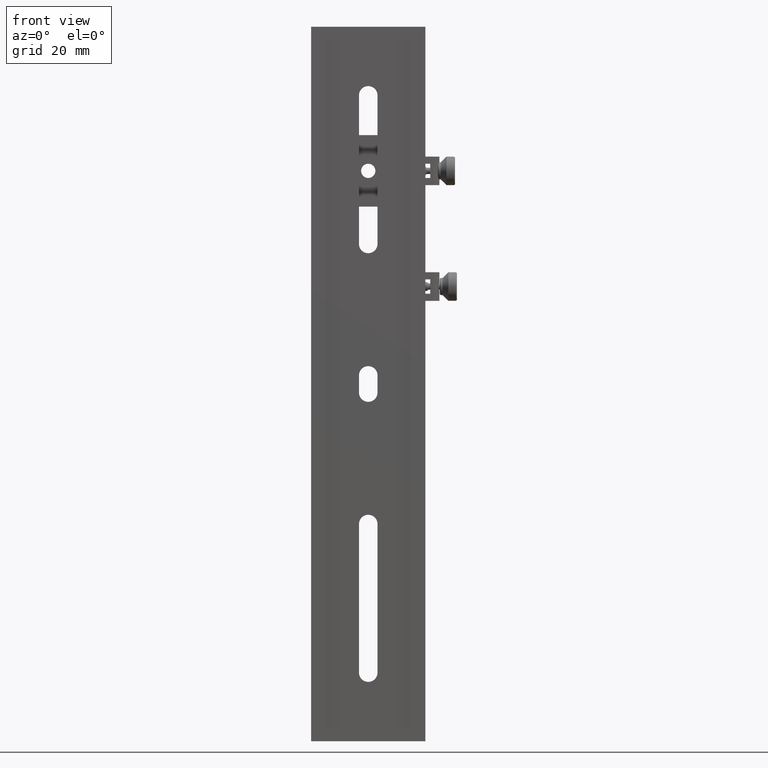
[diagram: clean part render]
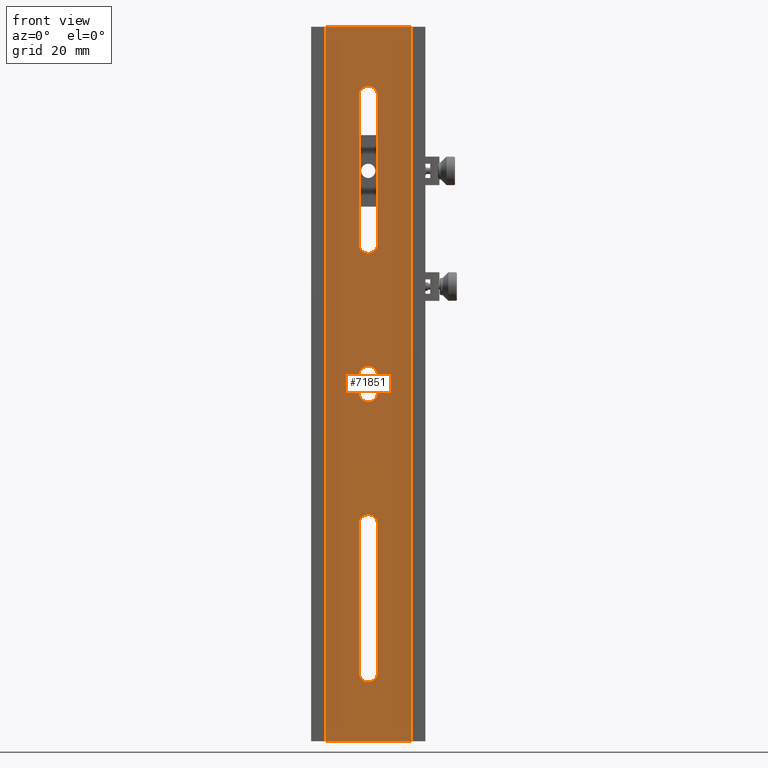
[diagram: same view with one face highlighted and labeled with its STEP entity id]
A machine part, front view. The second image highlights one B-rep face of the part: STEP entity #71851.
In plain terms, the highlighted planar face has unit normal (0, -1, 0).
Its self-contained STEP definition (entity closure, byte-faithful):
#786 = CARTESIAN_POINT ( 'NONE',  ( -20.26032092050903799, -2.956788624934999721, -6.167392011017266640 ) ) ;
#1215 = CARTESIAN_POINT ( 'NONE',  ( -17.85659485934300150, -2.956788624935001053, -3.430600443733370586 ) ) ;
#1605 = B_SPLINE_CURVE_WITH_KNOTS ( 'NONE', 3,
 ( #74560, #6483, #67862, #27073, #19490, #5153, #32908, #46366, #60257, #87566, #53088, #66959, #39638, #73241, #39200, #46802, #26223, #59811 ),
 .UNSPECIFIED., .F., .F.,
 ( 4, 2, 2, 2, 2, 2, 2, 2, 4 ),
 ( 0.000000000000000000, 0.1250000000000000000, 0.2500000000000000000, 0.3750000000000000000, 0.5000000000000000000, 0.6250000000000000000, 0.7500000000000000000, 0.8750000000000000000, 1.000000000000000000 ),
 .UNSPECIFIED. ) ;
#1610 = B_SPLINE_CURVE_WITH_KNOTS ( 'NONE', 3,
 ( #26030, #47059, #46189, #53358 ),
 .UNSPECIFIED., .F., .F.,
 ( 4, 4 ),
 ( 0.000000000000000000, 1.000000000000000000 ),
 .UNSPECIFIED. ) ;
#1711 = VERTEX_POINT ( 'NONE', #71266 ) ;
#2124 = CARTESIAN_POINT ( 'NONE',  ( -17.85659485934299795, -2.956788624935000165, 1.000000000000000000 ) ) ;
#3604 = CARTESIAN_POINT ( 'NONE',  ( -17.85659485934299795, -2.956788624935000165, -3.000000000000000000 ) ) ;
#3734 = CARTESIAN_POINT ( 'NONE',  ( -17.93905869912244100, -2.956788624935001941, 3.845926178466176459 ) ) ;
#3761 = B_SPLINE_CURVE_WITH_KNOTS ( 'NONE', 3,
 ( #82737, #1215, #62170, #74261, #40224, #67563, #48270, #786, #21393, #34377, #6192, #33513, #14227, #47384, #47840, #60859, #13804, #82313 ),
 .UNSPECIFIED., .F., .F.,
 ( 4, 2, 2, 2, 2, 2, 2, 2, 4 ),
 ( 0.000000000000000000, 0.1249999999999998890, 0.2499999999999998890, 0.3749999999999998890, 0.4999999999999998890, 0.6249999999999998890, 0.7499999999999998890, 0.8749999999999998890, 1.000000000000000000 ),
 .UNSPECIFIED. ) ;
#3770 = CARTESIAN_POINT ( 'NONE',  ( -24.35659485934299795, -2.956788624935000165, -49.00000000000000000 ) ) ;
#3814 = EDGE_CURVE ( 'NONE', #57604, #64510, #44147, .T. ) ;
#4167 = CARTESIAN_POINT ( 'NONE',  ( -18.26891405824020609, -2.956788624934999721, 4.641516131906914922 ) ) ;
#4625 = CARTESIAN_POINT ( 'NONE',  ( -21.95286879817627934, -2.956788624934999721, 6.167392011017279074 ) ) ;
#4763 = CARTESIAN_POINT ( 'NONE',  ( -23.10035524420647945, -2.956788624935000609, -103.6022305183279286 ) ) ;
#5074 = CARTESIAN_POINT ( 'NONE',  ( -19.46531653056762323, -2.956788624935000609, 5.838090410557754240 ) ) ;
#5153 = CARTESIAN_POINT ( 'NONE',  ( -19.11263124193531482, -2.956788624935000165, 46.39756636521663324 ) ) ;
#5727 = EDGE_CURVE ( 'NONE', #64510, #75881, #49356, .T. ) ;
#6145 = CARTESIAN_POINT ( 'NONE',  ( -17.85659485934299795, -2.956788624935000165, 101.0000000000000000 ) ) ;
#6192 = CARTESIAN_POINT ( 'NONE',  ( -21.95275884093866381, -2.956788624935000165, -6.167126550767320303 ) ) ;
#6483 = CARTESIAN_POINT ( 'NONE',  ( -17.85659485934299440, -2.956788624935000609, 48.56939955626573635 ) ) ;
#7535 = CARTESIAN_POINT ( 'NONE',  ( -24.35659485934299795, -2.956788624935000165, -3.000000000000000000 ) ) ;
#8142 = DIRECTION ( 'NONE',  ( 0.000000000000000000, -1.000000000000000000, 0.000000000000000000 ) ) ;
#8235 = EDGE_CURVE ( 'NONE', #44161, #1711, #55363, .T. ) ;
#8406 = CARTESIAN_POINT ( 'NONE',  ( -24.35659485934299795, -2.956788624935000165, 1.000000000000000000 ) ) ;
#8570 = FACE_BOUND ( 'NONE', #63133, .T. ) ;
#9722 = CARTESIAN_POINT ( 'NONE',  ( -17.85659485934300150, -2.956788624935001053, 101.4313524600773633 ) ) ;
#10129 = CARTESIAN_POINT ( 'NONE',  ( -24.35659485934299795, -2.956788624935000165, -101.0000000000000000 ) ) ;
#10628 = CARTESIAN_POINT ( 'NONE',  ( -20.26043087775214246, -2.956788624935000609, 104.1671265507766577 ) ) ;
#10913 = CARTESIAN_POINT ( 'NONE',  ( -18.50416116649691745, -2.956788624935000609, 4.993963559385911744 ) ) ;
#11375 = CARTESIAN_POINT ( 'NONE',  ( -21.53684813478605875, -2.956788624935000165, -45.75014366605233107 ) ) ;
#11511 = CARTESIAN_POINT ( 'NONE',  ( -20.67634158390513477, -2.956788624935000165, 104.2501436660602820 ) ) ;
#11868 = VERTEX_POINT ( 'NONE', #26880 ) ;
#13804 = CARTESIAN_POINT ( 'NONE',  ( -24.35659485934299795, -2.956788624934999721, -3.431352460069973631 ) ) ;
#13942 = CARTESIAN_POINT ( 'NONE',  ( -24.35659485934299795, -2.956788624935000165, -3.000000000000000000 ) ) ;
#14227 = CARTESIAN_POINT ( 'NONE',  ( -23.10035524420876385, -2.956788624935000165, -5.602230518327679931 ) ) ;
#14879 = CARTESIAN_POINT ( 'NONE',  ( -21.10659485934299795, -2.956788624935000165, 0.000000000000000000 ) ) ;
#15725 = PLANE ( 'NONE',  #41989 ) ;
#15836 = CARTESIAN_POINT ( 'NONE',  ( -6.106594859342999726, -2.956788624935000165, 125.0000000000000000 ) ) ;
#16007 = CARTESIAN_POINT ( 'NONE',  ( -24.35659485934299795, -2.956788624935000165, -49.00000000000000000 ) ) ;
#16461 = CARTESIAN_POINT ( 'NONE',  ( -23.10055847674763640, -2.956788624935000165, 103.6024336347831536 ) ) ;
#16614 = FACE_BOUND ( 'NONE', #22940, .T. ) ;
#17338 = EDGE_CURVE ( 'NONE', #69402, #82770, #1605, .T. ) ;
#18084 = CARTESIAN_POINT ( 'NONE',  ( -17.85659485934299795, -2.956788624935000165, 3.000000000000000000 ) ) ;
#18119 = CARTESIAN_POINT ( 'NONE',  ( -22.74776323087807839, -2.956788624935000165, -46.16217504969483088 ) ) ;
#19007 = CARTESIAN_POINT ( 'NONE',  ( -18.50416116649406817, -2.956788624935000165, -47.00603644062057640 ) ) ;
#19490 = CARTESIAN_POINT ( 'NONE',  ( -18.50436439903813479, -2.956788624935000165, 47.00623955707076362 ) ) ;
#19609 = CARTESIAN_POINT ( 'NONE',  ( -17.85659485934299795, -2.956788624935000165, -49.00000000000000000 ) ) ;
#19644 = CARTESIAN_POINT ( 'NONE',  ( -16.10659485934299795, -2.956788624935000165, -125.0000000000000000 ) ) ;
#20984 = CARTESIAN_POINT ( 'NONE',  ( -17.85659485934299795, -2.956788624935000165, -1.000000000000000000 ) ) ;
#21166 = VERTEX_POINT ( 'NONE', #63563 ) ;
#21393 = CARTESIAN_POINT ( 'NONE',  ( -20.67634158390622545, -2.956788624935000165, -6.249856333946728348 ) ) ;
#22475 = FACE_OUTER_BOUND ( 'NONE', #71084, .T. ) ;
#22940 = EDGE_LOOP ( 'NONE', ( #35050, #36854, #27368, #63196 ) ) ;
#23588 = ORIENTED_EDGE ( 'NONE', *, *, #38014, .F. ) ;
#23938 = CARTESIAN_POINT ( 'NONE',  ( -18.26891405824019188, -2.956788624935000609, -47.35848386809270494 ) ) ;
#24036 = CARTESIAN_POINT ( 'NONE',  ( -17.85659485934299440, -2.956788624935000609, -101.4306004437302704 ) ) ;
#24511 = CARTESIAN_POINT ( 'NONE',  ( -19.46531653056077715, -2.956788624935000165, 103.8380904105465561 ) ) ;
#24808 = CARTESIAN_POINT ( 'NONE',  ( -24.35659485934299795, -2.956788624935000165, 3.000000000000000000 ) ) ;
#24934 = CARTESIAN_POINT ( 'NONE',  ( -22.74787318812167314, -2.956788624935000165, -103.8380904105526810 ) ) ;
#25061 = EDGE_CURVE ( 'NONE', #11868, #41984, #51700, .T. ) ;
#25381 = CARTESIAN_POINT ( 'NONE',  ( -24.35659485934300506, -2.956788624935001053, -101.4313524600646730 ) ) ;
#26030 = CARTESIAN_POINT ( 'NONE',  ( -24.35659485934299795, -2.956788624935000165, -101.0000000000000000 ) ) ;
#26223 = CARTESIAN_POINT ( 'NONE',  ( -24.35659485934300506, -2.956788624935001053, 48.56864753992794448 ) ) ;
#26600 = CARTESIAN_POINT ( 'NONE',  ( -36.10659485934299795, -2.956788624935000165, 125.0000000000000000 ) ) ;
#26880 = CARTESIAN_POINT ( 'NONE',  ( -24.35659485934299795, -2.956788624935000165, 3.000000000000000000 ) ) ;
#27073 = CARTESIAN_POINT ( 'NONE',  ( -18.26850444873791801, -2.956788624935000165, 47.35872167126983356 ) ) ;
#27320 = ORIENTED_EDGE ( 'NONE', *, *, #25061, .T. ) ;
#27368 = ORIENTED_EDGE ( 'NONE', *, *, #3814, .T. ) ;
#27698 = CARTESIAN_POINT ( 'NONE',  ( -17.85659485934299795, -2.956788624935000165, -3.000000000000000000 ) ) ;
#27815 = EDGE_CURVE ( 'NONE', #21166, #30804, #49339, .T. ) ;
#28663 = CARTESIAN_POINT ( 'NONE',  ( -36.10659485934299795, -2.956788624935000165, 41.66666666666665009 ) ) ;
#28683 = B_SPLINE_CURVE_WITH_KNOTS ( 'NONE', 3,
 ( #7535, #61312, #8406, #68467 ),
 .UNSPECIFIED., .F., .F.,
 ( 4, 4 ),
 ( 0.000000000000000000, 1.000000000000000000 ),
 .UNSPECIFIED. ) ;
#30804 = VERTEX_POINT ( 'NONE', #15836 ) ;
#31632 = CARTESIAN_POINT ( 'NONE',  ( -18.50436439904666486, -2.956788624935000165, -102.9937604429299256 ) ) ;
#31876 = ORIENTED_EDGE ( 'NONE', *, *, #85686, .T. ) ;
#31956 = CARTESIAN_POINT ( 'NONE',  ( -17.85659485934299795, -2.956788624935000165, 3.431352460070659305 ) ) ;
#31990 = CARTESIAN_POINT ( 'NONE',  ( -17.85659485934299795, -2.956788624935000165, -49.00000000000000000 ) ) ;
#32908 = CARTESIAN_POINT ( 'NONE',  ( -19.46542648781271367, -2.956788624935000165, 46.16217504969224450 ) ) ;
#32938 = CARTESIAN_POINT ( 'NONE',  ( -6.106594859342999726, -2.956788624935000165, -125.0000000000000000 ) ) ;
#33283 = ORIENTED_EDGE ( 'NONE', *, *, #66687, .T. ) ;
#33513 = CARTESIAN_POINT ( 'NONE',  ( -22.74787318812041548, -2.956788624935000609, -5.838090410556037391 ) ) ;
#34377 = CARTESIAN_POINT ( 'NONE',  ( -21.53684813477977400, -2.956788624935000609, -6.250143666053271652 ) ) ;
#34486 = CARTESIAN_POINT ( 'NONE',  ( -36.10659485934299795, -2.956788624935000165, -41.66666666666665009 ) ) ;
#35000 = B_SPLINE_CURVE_WITH_KNOTS ( 'NONE', 3,
 ( #68444, #82316, #19644, #61291 ),
 .UNSPECIFIED., .F., .F.,
 ( 4, 4 ),
 ( 0.000000000000000000, 1.000000000000000000 ),
 .UNSPECIFIED. ) ;
#35050 = ORIENTED_EDGE ( 'NONE', *, *, #73527, .T. ) ;
#35297 = CARTESIAN_POINT ( 'NONE',  ( -24.35659485934299795, -2.956788624935000165, -101.0000000000000000 ) ) ;
#35428 = ORIENTED_EDGE ( 'NONE', *, *, #59829, .T. ) ;
#36854 = ORIENTED_EDGE ( 'NONE', *, *, #56543, .T. ) ;
#37029 = CARTESIAN_POINT ( 'NONE',  ( -17.85659485934299795, -2.956788624935000165, 101.0000000000000000 ) ) ;
#38014 = EDGE_CURVE ( 'NONE', #64090, #41984, #75484, .T. ) ;
#38252 = CARTESIAN_POINT ( 'NONE',  ( -20.67634158389992649, -2.956788624935000165, -45.74985633394767603 ) ) ;
#38652 = CARTESIAN_POINT ( 'NONE',  ( -19.11283447447652506, -2.956788624935000165, 5.602230518326646980 ) ) ;
#38688 = CARTESIAN_POINT ( 'NONE',  ( -21.95286879818100445, -2.956788624935000165, -45.83260798898176347 ) ) ;
#38832 = CARTESIAN_POINT ( 'NONE',  ( -23.70882531965090934, -2.956788624935000165, 102.9937604429292719 ) ) ;
#39200 = CARTESIAN_POINT ( 'NONE',  ( -23.94427566044581113, -2.956788624935000609, 47.35848386809457367 ) ) ;
#39638 = CARTESIAN_POINT ( 'NONE',  ( -23.10035524420958808, -2.956788624935000609, 46.39776948167211401 ) ) ;
#39732 = CARTESIAN_POINT ( 'NONE',  ( -17.85659485934299795, -2.956788624935000165, 83.66666666666669983 ) ) ;
#40224 = CARTESIAN_POINT ( 'NONE',  ( -18.50436439903792163, -2.956788624934999721, -4.993760442927133170 ) ) ;
#41984 = VERTEX_POINT ( 'NONE', #54330 ) ;
#41989 = AXIS2_PLACEMENT_3D ( 'NONE', #14879, #8142, #77531 ) ;
#42023 = ORIENTED_EDGE ( 'NONE', *, *, #27815, .T. ) ;
#43179 = ORIENTED_EDGE ( 'NONE', *, *, #8235, .T. ) ;
#44147 = B_SPLINE_CURVE_WITH_KNOTS ( 'NONE', 3,
 ( #3770, #66909, #44514, #45422, #53030, #51239, #18119, #38688, #11375, #38252, #80336, #79011, #78550, #19007, #23938, #73184, #87065, #52160 ),
 .UNSPECIFIED., .F., .F.,
 ( 4, 2, 2, 2, 2, 2, 2, 2, 4 ),
 ( 0.000000000000000000, 0.1250000000000000000, 0.2500000000000000000, 0.3750000000000000000, 0.5000000000000000000, 0.6250000000000000000, 0.7500000000000000000, 0.8750000000000000000, 1.000000000000000000 ),
 .UNSPECIFIED. ) ;
#44161 = VERTEX_POINT ( 'NONE', #49518 ) ;
#44514 = CARTESIAN_POINT ( 'NONE',  ( -24.27372141006092576, -2.956788624935000609, -48.15383601835743121 ) ) ;
#44649 = CARTESIAN_POINT ( 'NONE',  ( -22.74776323085697527, -2.956788624935000165, 103.8378249503130917 ) ) ;
#45001 = B_SPLINE_CURVE_WITH_KNOTS ( 'NONE', 3,
 ( #84530, #86315, #45550, #58115, #38832, #16461, #44649, #65709, #71987, #11511, #10628, #24511, #71096, #66162, #51828, #79143, #9722, #37029 ),
 .UNSPECIFIED., .F., .F.,
 ( 4, 2, 2, 2, 2, 2, 2, 2, 4 ),
 ( 0.000000000000000000, 0.1250000000000000000, 0.2500000000000000000, 0.3750000000000000000, 0.5000000000000000000, 0.6250000000000000000, 0.7500000000000000000, 0.8750000000000000000, 1.000000000000000000 ),
 .UNSPECIFIED. ) ;
#45083 = CARTESIAN_POINT ( 'NONE',  ( -24.27413101956355845, -2.956788624935001053, -101.8459261784601466 ) ) ;
#45422 = CARTESIAN_POINT ( 'NONE',  ( -23.94468526994842250, -2.956788624935000165, -47.35872167126957066 ) ) ;
#45550 = CARTESIAN_POINT ( 'NONE',  ( -24.27372141006444650, -2.956788624935000609, 101.8461639816362947 ) ) ;
#46189 = CARTESIAN_POINT ( 'NONE',  ( -24.35659485934299795, -2.956788624935000165, -66.33333333333330017 ) ) ;
#46280 = CARTESIAN_POINT ( 'NONE',  ( -20.26043087774529283, -2.956788624935000165, 6.167126550765607007 ) ) ;
#46358 = B_SPLINE_CURVE_WITH_KNOTS ( 'NONE', 3,
 ( #79110, #24036, #52695, #59858, #31632, #73296, #58978, #64794, #66135, #86284, #85392, #24934, #4763, #72839, #52255, #45083, #25381, #10129 ),
 .UNSPECIFIED., .F., .F.,
 ( 4, 2, 2, 2, 2, 2, 2, 2, 4 ),
 ( 0.000000000000000000, 0.1250000000000000000, 0.2500000000000000000, 0.3750000000000000000, 0.5000000000000000000, 0.6250000000000000000, 0.7500000000000000000, 0.8750000000000000000, 1.000000000000000000 ),
 .UNSPECIFIED. ) ;
#46366 = CARTESIAN_POINT ( 'NONE',  ( -20.26032092050021305, -2.956788624935000165, 45.83260798898436406 ) ) ;
#46802 = CARTESIAN_POINT ( 'NONE',  ( -24.27413101956355845, -2.956788624935001053, 48.15407382153242111 ) ) ;
#47059 = CARTESIAN_POINT ( 'NONE',  ( -24.35659485934299795, -2.956788624935000165, -83.66666666666669983 ) ) ;
#47384 = CARTESIAN_POINT ( 'NONE',  ( -23.70902855218979255, -2.956788624935001053, -4.993963559384880568 ) ) ;
#47444 = CARTESIAN_POINT ( 'NONE',  ( -24.35659485934299795, -2.956788624935000165, 83.66666666666669983 ) ) ;
#47599 = VERTEX_POINT ( 'NONE', #35297 ) ;
#47840 = CARTESIAN_POINT ( 'NONE',  ( -23.94427566044580047, -2.956788624935000165, -4.641516131907593490 ) ) ;
#48270 = CARTESIAN_POINT ( 'NONE',  ( -19.46542648780387452, -2.956788624935000165, -5.837824950306093719 ) ) ;
#48714 = CARTESIAN_POINT ( 'NONE',  ( -17.85659485934299795, -2.956788624935000165, 3.000000000000000000 ) ) ;
#48846 = CARTESIAN_POINT ( 'NONE',  ( -17.85659485934299795, -2.956788624935000165, -83.66666666666669983 ) ) ;
#49233 = B_SPLINE_CURVE_WITH_KNOTS ( 'NONE', 3,
 ( #67351, #60200, #69125, #26600 ),
 .UNSPECIFIED., .F., .F.,
 ( 4, 4 ),
 ( 0.000000000000000000, 1.000000000000000000 ),
 .UNSPECIFIED. ) ;
#49339 = B_SPLINE_CURVE_WITH_KNOTS ( 'NONE', 3,
 ( #32938, #88042, #81300, #60289 ),
 .UNSPECIFIED., .F., .F.,
 ( 4, 4 ),
 ( 0.000000000000000000, 1.000000000000000000 ),
 .UNSPECIFIED. ) ;
#49356 = B_SPLINE_CURVE_WITH_KNOTS ( 'NONE', 3,
 ( #31990, #50373, #48846, #86642 ),
 .UNSPECIFIED., .F., .F.,
 ( 4, 4 ),
 ( 0.000000000000000000, 1.000000000000000000 ),
 .UNSPECIFIED. ) ;
#49486 = ORIENTED_EDGE ( 'NONE', *, *, #50501, .T. ) ;
#49518 = CARTESIAN_POINT ( 'NONE',  ( -36.10659485934299795, -2.956788624935000165, 125.0000000000000000 ) ) ;
#50373 = CARTESIAN_POINT ( 'NONE',  ( -17.85659485934299795, -2.956788624935000165, -66.33333333333330017 ) ) ;
#50501 = EDGE_CURVE ( 'NONE', #57920, #69402, #86118, .T. ) ;
#51239 = CARTESIAN_POINT ( 'NONE',  ( -23.10055847675078411, -2.956788624935000165, -46.39756636521730115 ) ) ;
#51337 = ORIENTED_EDGE ( 'NONE', *, *, #17338, .T. ) ;
#51385 = EDGE_CURVE ( 'NONE', #64090, #75114, #3761, .T. ) ;
#51700 = B_SPLINE_CURVE_WITH_KNOTS ( 'NONE', 3,
 ( #24808, #79432, #87477, #80757, #52993, #72710, #65985, #4625, #66875, #80303, #46280, #5074, #38652, #10913, #4167, #3734, #31956, #18084 ),
 .UNSPECIFIED., .F., .F.,
 ( 4, 2, 2, 2, 2, 2, 2, 2, 4 ),
 ( 0.000000000000000000, 0.1250000000000001110, 0.2500000000000001110, 0.3750000000000001110, 0.5000000000000001110, 0.6250000000000001110, 0.7500000000000001110, 0.8750000000000001110, 1.000000000000000000 ),
 .UNSPECIFIED. ) ;
#51828 = CARTESIAN_POINT ( 'NONE',  ( -18.26891405824018833, -2.956788624935000609, 102.6415161319000191 ) ) ;
#52160 = CARTESIAN_POINT ( 'NONE',  ( -17.85659485934299795, -2.956788624935000165, -49.00000000000000000 ) ) ;
#52255 = CARTESIAN_POINT ( 'NONE',  ( -23.94427566044580757, -2.956788624935000609, -102.6415161319126952 ) ) ;
#52695 = CARTESIAN_POINT ( 'NONE',  ( -17.93946830863297137, -2.956788624935000609, -101.8461639816587052 ) ) ;
#52993 = CARTESIAN_POINT ( 'NONE',  ( -23.70882531964827322, -2.956788624935000165, 4.993760442926780563 ) ) ;
#53030 = CARTESIAN_POINT ( 'NONE',  ( -23.70882531964775808, -2.956788624935000165, -47.00623955707010282 ) ) ;
#53088 = CARTESIAN_POINT ( 'NONE',  ( -21.95275884093853946, -2.956788624935000609, 45.83287344923355988 ) ) ;
#53358 = CARTESIAN_POINT ( 'NONE',  ( -24.35659485934299795, -2.956788624935000165, -49.00000000000000000 ) ) ;
#54070 = EDGE_CURVE ( 'NONE', #78513, #57920, #45001, .T. ) ;
#54330 = CARTESIAN_POINT ( 'NONE',  ( -17.85659485934299795, -2.956788624935000165, 3.000000000000000000 ) ) ;
#55067 = CARTESIAN_POINT ( 'NONE',  ( -17.85659485934299795, -2.956788624935000165, 49.00000000000000000 ) ) ;
#55363 = B_SPLINE_CURVE_WITH_KNOTS ( 'NONE', 3,
 ( #81978, #28663, #34486, #61839 ),
 .UNSPECIFIED., .F., .F.,
 ( 4, 4 ),
 ( 0.000000000000000000, 1.000000000000000000 ),
 .UNSPECIFIED. ) ;
#56181 = CARTESIAN_POINT ( 'NONE',  ( -24.35659485934299795, -2.956788624935000165, 101.0000000000000000 ) ) ;
#56543 = EDGE_CURVE ( 'NONE', #47599, #57604, #1610, .T. ) ;
#56760 = ORIENTED_EDGE ( 'NONE', *, *, #51385, .T. ) ;
#57604 = VERTEX_POINT ( 'NONE', #16007 ) ;
#57920 = VERTEX_POINT ( 'NONE', #75078 ) ;
#58115 = CARTESIAN_POINT ( 'NONE',  ( -23.94468526994490176, -2.956788624935000165, 102.6412783287365613 ) ) ;
#58978 = CARTESIAN_POINT ( 'NONE',  ( -19.46542648777995410, -2.956788624935000165, -103.8378249502968060 ) ) ;
#59811 = CARTESIAN_POINT ( 'NONE',  ( -24.35659485934299795, -2.956788624935000165, 49.00000000000000000 ) ) ;
#59829 = EDGE_CURVE ( 'NONE', #82770, #78513, #87760, .T. ) ;
#59858 = CARTESIAN_POINT ( 'NONE',  ( -18.26850444872968282, -2.956788624935000165, -102.6412783287140940 ) ) ;
#60200 = CARTESIAN_POINT ( 'NONE',  ( -16.10659485934299795, -2.956788624935000165, 125.0000000000000000 ) ) ;
#60257 = CARTESIAN_POINT ( 'NONE',  ( -20.67634158391255284, -2.956788624935000165, 45.75014366605493166 ) ) ;
#60289 = CARTESIAN_POINT ( 'NONE',  ( -6.106594859342999726, -2.956788624935000165, 125.0000000000000000 ) ) ;
#60859 = CARTESIAN_POINT ( 'NONE',  ( -24.27413101956355845, -2.956788624935000609, -3.845926178465486789 ) ) ;
#61291 = CARTESIAN_POINT ( 'NONE',  ( -6.106594859342999726, -2.956788624935000165, -125.0000000000000000 ) ) ;
#61312 = CARTESIAN_POINT ( 'NONE',  ( -24.35659485934299795, -2.956788624935000165, -1.000000000000000000 ) ) ;
#61339 = CARTESIAN_POINT ( 'NONE',  ( -24.35659485934299795, -2.956788624935000165, 66.33333333333330017 ) ) ;
#61839 = CARTESIAN_POINT ( 'NONE',  ( -36.10659485934299795, -2.956788624935000165, -125.0000000000000000 ) ) ;
#62170 = CARTESIAN_POINT ( 'NONE',  ( -17.93946830862673636, -2.956788624935000609, -3.846163981646760988 ) ) ;
#63133 = EDGE_LOOP ( 'NONE', ( #51337, #35428, #77051, #49486 ) ) ;
#63196 = ORIENTED_EDGE ( 'NONE', *, *, #5727, .T. ) ;
#63563 = CARTESIAN_POINT ( 'NONE',  ( -6.106594859342999726, -2.956788624935000165, -125.0000000000000000 ) ) ;
#64090 = VERTEX_POINT ( 'NONE', #3604 ) ;
#64103 = FACE_BOUND ( 'NONE', #66202, .T. ) ;
#64510 = VERTEX_POINT ( 'NONE', #19609 ) ;
#64794 = CARTESIAN_POINT ( 'NONE',  ( -20.26032092053297262, -2.956788624935000165, -104.1673920110264078 ) ) ;
#65709 = CARTESIAN_POINT ( 'NONE',  ( -21.95286879820210046, -2.956788624935000165, 104.1673920110101506 ) ) ;
#65985 = CARTESIAN_POINT ( 'NONE',  ( -22.74776323088279639, -2.956788624935000165, 5.837824950306081284 ) ) ;
#66135 = CARTESIAN_POINT ( 'NONE',  ( -20.67634158387782151, -2.956788624935000165, -104.2498563339558757 ) ) ;
#66162 = CARTESIAN_POINT ( 'NONE',  ( -18.50416116650476894, -2.956788624935000165, 102.9939635593980682 ) ) ;
#66202 = EDGE_LOOP ( 'NONE', ( #56760, #31876, #27320, #23588 ) ) ;
#66687 = EDGE_CURVE ( 'NONE', #30804, #44161, #49233, .T. ) ;
#66875 = CARTESIAN_POINT ( 'NONE',  ( -21.53684813477769211, -2.956788624935000165, 6.249856333946735454 ) ) ;
#66909 = CARTESIAN_POINT ( 'NONE',  ( -24.35659485934299084, -2.956788624935000609, -48.56939955626678795 ) ) ;
#66959 = CARTESIAN_POINT ( 'NONE',  ( -22.74787318812055048, -2.956788624935000165, 46.16190958944304157 ) ) ;
#67057 = CARTESIAN_POINT ( 'NONE',  ( -17.85659485934299795, -2.956788624935000165, 66.33333333333330017 ) ) ;
#67158 = CARTESIAN_POINT ( 'NONE',  ( -24.35659485934299795, -2.956788624935000165, 101.0000000000000000 ) ) ;
#67351 = CARTESIAN_POINT ( 'NONE',  ( -6.106594859342999726, -2.956788624935000165, 125.0000000000000000 ) ) ;
#67563 = CARTESIAN_POINT ( 'NONE',  ( -19.11263124193551377, -2.956788624934999721, -5.602433634785423777 ) ) ;
#67862 = CARTESIAN_POINT ( 'NONE',  ( -17.93946830862472552, -2.956788624935000609, 48.15383601835716831 ) ) ;
#67966 = CARTESIAN_POINT ( 'NONE',  ( -17.85659485934299795, -2.956788624935000165, 49.00000000000000000 ) ) ;
#68444 = CARTESIAN_POINT ( 'NONE',  ( -36.10659485934299795, -2.956788624935000165, -125.0000000000000000 ) ) ;
#68467 = CARTESIAN_POINT ( 'NONE',  ( -24.35659485934299795, -2.956788624935000165, 3.000000000000000000 ) ) ;
#69125 = CARTESIAN_POINT ( 'NONE',  ( -26.10659485934300150, -2.956788624935000165, 125.0000000000000000 ) ) ;
#69402 = VERTEX_POINT ( 'NONE', #55067 ) ;
#71084 = EDGE_LOOP ( 'NONE', ( #42023, #33283, #43179, #71612 ) ) ;
#71096 = CARTESIAN_POINT ( 'NONE',  ( -19.11283447446867356, -2.956788624935000609, 103.6022305183143430 ) ) ;
#71266 = CARTESIAN_POINT ( 'NONE',  ( -36.10659485934299795, -2.956788624935000165, -125.0000000000000000 ) ) ;
#71612 = ORIENTED_EDGE ( 'NONE', *, *, #79129, .T. ) ;
#71851 = ADVANCED_FACE ( 'NONE', ( #22475, #64103, #8570, #16614 ), #15725, .T. ) ;
#71987 = CARTESIAN_POINT ( 'NONE',  ( -21.53684813478085758, -2.956788624935000165, 104.2498563339397180 ) ) ;
#72710 = CARTESIAN_POINT ( 'NONE',  ( -23.10055847675028673, -2.956788624934999721, 5.602433634785779049 ) ) ;
#72839 = CARTESIAN_POINT ( 'NONE',  ( -23.70902855219209471, -2.956788624935000165, -102.9939635593844685 ) ) ;
#73184 = CARTESIAN_POINT ( 'NONE',  ( -17.93905869912243745, -2.956788624935001053, -48.15407382153430405 ) ) ;
#73241 = CARTESIAN_POINT ( 'NONE',  ( -23.70902855218898608, -2.956788624935000165, 47.00603644061530417 ) ) ;
#73296 = CARTESIAN_POINT ( 'NONE',  ( -19.11263124192678475, -2.956788624935000165, -103.6024336347824573 ) ) ;
#73527 = EDGE_CURVE ( 'NONE', #75881, #47599, #46358, .T. ) ;
#74261 = CARTESIAN_POINT ( 'NONE',  ( -18.26850444873589652, -2.956788624934999721, -4.641278328726319735 ) ) ;
#74560 = CARTESIAN_POINT ( 'NONE',  ( -17.85659485934299795, -2.956788624935000165, 49.00000000000000000 ) ) ;
#75078 = CARTESIAN_POINT ( 'NONE',  ( -17.85659485934299795, -2.956788624935000165, 101.0000000000000000 ) ) ;
#75114 = VERTEX_POINT ( 'NONE', #13942 ) ;
#75484 = B_SPLINE_CURVE_WITH_KNOTS ( 'NONE', 3,
 ( #27698, #20984, #2124, #48714 ),
 .UNSPECIFIED., .F., .F.,
 ( 4, 4 ),
 ( 0.000000000000000000, 1.000000000000000000 ),
 .UNSPECIFIED. ) ;
#75881 = VERTEX_POINT ( 'NONE', #83526 ) ;
#77051 = ORIENTED_EDGE ( 'NONE', *, *, #54070, .T. ) ;
#77531 = DIRECTION ( 'NONE',  ( 0.000000000000000000, 0.000000000000000000, -1.000000000000000000 ) ) ;
#78513 = VERTEX_POINT ( 'NONE', #56181 ) ;
#78550 = CARTESIAN_POINT ( 'NONE',  ( -19.11283447447937078, -2.956788624935000609, -46.39776948166683468 ) ) ;
#79011 = CARTESIAN_POINT ( 'NONE',  ( -19.46531653055715694, -2.956788624935000165, -46.16190958944903855 ) ) ;
#79110 = CARTESIAN_POINT ( 'NONE',  ( -17.85659485934299795, -2.956788624935000165, -101.0000000000000000 ) ) ;
#79129 = EDGE_CURVE ( 'NONE', #1711, #21166, #35000, .T. ) ;
#79143 = CARTESIAN_POINT ( 'NONE',  ( -17.93905869912243745, -2.956788624935001053, 101.8459261784728085 ) ) ;
#79432 = CARTESIAN_POINT ( 'NONE',  ( -24.35659485934301216, -2.956788624935001497, 3.430600443733774707 ) ) ;
#79821 = CARTESIAN_POINT ( 'NONE',  ( -24.35659485934299795, -2.956788624935000165, 49.00000000000000000 ) ) ;
#80303 = CARTESIAN_POINT ( 'NONE',  ( -20.67634158390829668, -2.956788624935000609, 6.250143666053266323 ) ) ;
#80336 = CARTESIAN_POINT ( 'NONE',  ( -20.26043087775575913, -2.956788624935000609, -45.83287344922757711 ) ) ;
#80757 = CARTESIAN_POINT ( 'NONE',  ( -23.94468526994991819, -2.956788624935000165, 4.641278328726346381 ) ) ;
#81300 = CARTESIAN_POINT ( 'NONE',  ( -6.106594859342999726, -2.956788624935000165, 41.66666666666665009 ) ) ;
#81978 = CARTESIAN_POINT ( 'NONE',  ( -36.10659485934299795, -2.956788624935000165, 125.0000000000000000 ) ) ;
#82313 = CARTESIAN_POINT ( 'NONE',  ( -24.35659485934299795, -2.956788624935000165, -3.000000000000000000 ) ) ;
#82316 = CARTESIAN_POINT ( 'NONE',  ( -26.10659485934300150, -2.956788624935000165, -125.0000000000000000 ) ) ;
#82737 = CARTESIAN_POINT ( 'NONE',  ( -17.85659485934299795, -2.956788624935000165, -3.000000000000000000 ) ) ;
#82770 = VERTEX_POINT ( 'NONE', #79821 ) ;
#83526 = CARTESIAN_POINT ( 'NONE',  ( -17.85659485934299795, -2.956788624935000165, -101.0000000000000000 ) ) ;
#84530 = CARTESIAN_POINT ( 'NONE',  ( -24.35659485934299795, -2.956788624935000165, 101.0000000000000000 ) ) ;
#85392 = CARTESIAN_POINT ( 'NONE',  ( -21.95275884093742391, -2.956788624935000609, -104.1671265507705471 ) ) ;
#85686 = EDGE_CURVE ( 'NONE', #75114, #11868, #28683, .T. ) ;
#86118 = B_SPLINE_CURVE_WITH_KNOTS ( 'NONE', 3,
 ( #6145, #39732, #67057, #67966 ),
 .UNSPECIFIED., .F., .F.,
 ( 4, 4 ),
 ( 0.000000000000000000, 1.000000000000000000 ),
 .UNSPECIFIED. ) ;
#86284 = CARTESIAN_POINT ( 'NONE',  ( -21.53684813480819216, -2.956788624935000165, -104.2501436660441243 ) ) ;
#86315 = CARTESIAN_POINT ( 'NONE',  ( -24.35659485934298729, -2.956788624935000609, 101.4306004437354716 ) ) ;
#86642 = CARTESIAN_POINT ( 'NONE',  ( -17.85659485934299795, -2.956788624935000165, -101.0000000000000000 ) ) ;
#87065 = CARTESIAN_POINT ( 'NONE',  ( -17.85659485934300150, -2.956788624935001053, -48.56864753992980610 ) ) ;
#87477 = CARTESIAN_POINT ( 'NONE',  ( -24.27372141005944428, -2.956788624935000165, 3.846163981646733010 ) ) ;
#87566 = CARTESIAN_POINT ( 'NONE',  ( -21.53684813477345728, -2.956788624935000165, 45.74985633394506834 ) ) ;
#87760 = B_SPLINE_CURVE_WITH_KNOTS ( 'NONE', 3,
 ( #88210, #61339, #47444, #67158 ),
 .UNSPECIFIED., .F., .F.,
 ( 4, 4 ),
 ( 0.000000000000000000, 1.000000000000000000 ),
 .UNSPECIFIED. ) ;
#88042 = CARTESIAN_POINT ( 'NONE',  ( -6.106594859342999726, -2.956788624935000165, -41.66666666666665009 ) ) ;
#88210 = CARTESIAN_POINT ( 'NONE',  ( -24.35659485934299795, -2.956788624935000165, 49.00000000000000000 ) ) ;